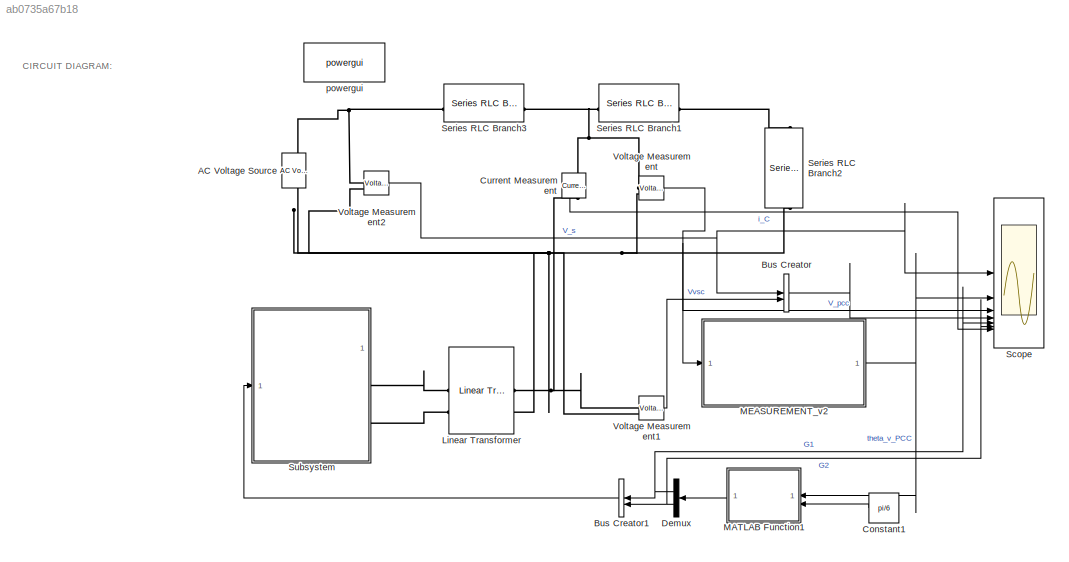
MODEL slx_ab0735a67b18
KIND model
CONFIG AbsTol = auto
CONFIG EnableMultiTasking = off
CONFIG FixedStep = auto
CONFIG MaxStep = auto
CONFIG MinStep = auto
CONFIG RelTol = 1e-3
CONFIG SampleTimeConstraint = Unconstrained
CONFIG SolverName = VariableStepAuto
CONFIG StartTime = 0.0
CONFIG StopTime = 0.1
BLOCK [Reference] AC Voltage Source  REF=spsACVoltageSourceLib/AC Voltage Source
  LibrarySourceBlock = sps_lib/Sources/AC Voltage Source
  SourceBlock = spsACVoltageSourceLib/AC Voltage Source
  SourceType = AC Voltage Source
BLOCK [BusCreator] Bus Creator
  DisplayOption = bar
  InheritFromInputs = on
  Inputs = 2
  NameLocation = right
BLOCK [BusCreator] Bus Creator1
  DisplayOption = bar
  InheritFromInputs = on
  Inputs = 2
  NameLocation = top
BLOCK [Constant] Constant1
  NameLocation = top
  Value = pi/6
BLOCK [Reference] Current Measurement  REF=spsCurrentMeasurementLib/Current Measurement
  LibrarySourceBlock = sps_lib/Sensors and Measurements/Current Measurement
  NameLocation = left
  SourceBlock = spsCurrentMeasurementLib/Current Measurement
  SourceType = Current Measurement
  UserDataPersistent = on
BLOCK [Demux] Demux
  NameLocation = top
  Outputs = 2
BLOCK [Reference] Linear Transformer  REF=spsLinearTransformerLib/Linear Transformer
  LibrarySourceBlock = sps_lib/Power Grid Elements/Linear Transformer
  SourceBlock = spsLinearTransformerLib/Linear Transformer
  SourceType = Linear Transformer
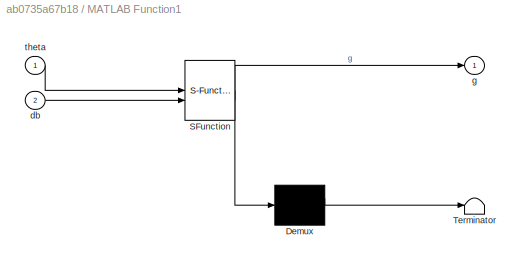
BLOCK [SubSystem] MATLAB Function1
  ErrorFcn = Stateflow.Translate.translate
  LibrarySourceBlock = simulink/User-Defined\nFunctions/MATLAB Function
  NameLocation = top
  PermitHierarchicalResolution = ExplicitOnly
  SFBlockType = MATLAB Function
  TreatAsAtomicUnit = on
BLOCK [Demux] MATLAB Function1/ Demux 
  Outputs = 1
BLOCK [S-Function] MATLAB Function1/ SFunction 
  EnableBusSupport = on
  FunctionName = sf_sfun
  PortCounts = [2 2]
  SFcnIsStateOwnerBlock = off
  SFunctionDeploymentMode = off
  Tag = Stateflow S-Function 1
BLOCK [Terminator] MATLAB Function1/ Terminator 
BLOCK [Inport] MATLAB Function1/db
  Port = 2
BLOCK [Outport] MATLAB Function1/g
BLOCK [Inport] MATLAB Function1/theta
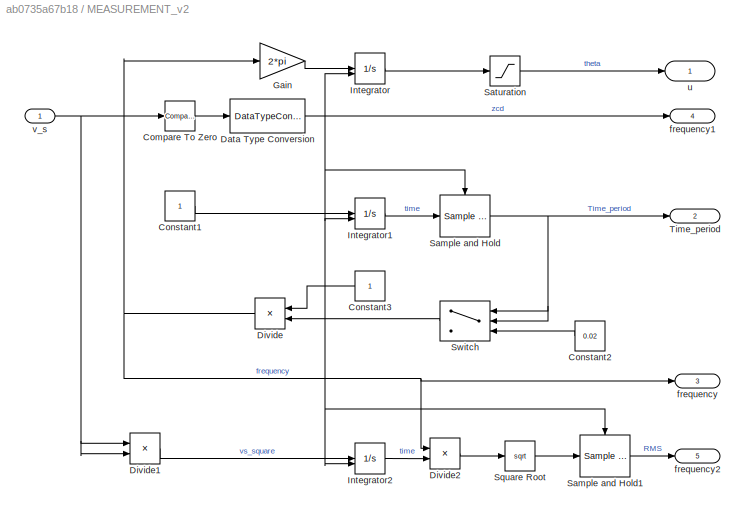
BLOCK [SubSystem] MEASUREMENT_v2
BLOCK [Reference] MEASUREMENT_v2/Compare To Zero  REF=simulink/Logic and Bit
Operations/Compare
To Zero
  SourceBlock = simulink/Logic and Bit\nOperations/Compare\nTo Zero
  SourceType = Compare To Zero
BLOCK [Constant] MEASUREMENT_v2/Constant1
BLOCK [Constant] MEASUREMENT_v2/Constant2
  NameLocation = top
  Value = 0.02
BLOCK [Constant] MEASUREMENT_v2/Constant3
  NameLocation = top
BLOCK [DataTypeConversion] MEASUREMENT_v2/Data Type Conversion
  RndMeth = Floor
  SaturateOnIntegerOverflow = off
BLOCK [Product] MEASUREMENT_v2/Divide
  Inputs = */
  NameLocation = top
BLOCK [Product] MEASUREMENT_v2/Divide1
  Inputs = **
BLOCK [Product] MEASUREMENT_v2/Divide2
  Inputs = **
BLOCK [Gain] MEASUREMENT_v2/Gain
  Gain = 2*pi
BLOCK [Integrator] MEASUREMENT_v2/Integrator
  ExternalReset = rising
BLOCK [Integrator] MEASUREMENT_v2/Integrator1
  ExternalReset = rising
BLOCK [Integrator] MEASUREMENT_v2/Integrator2
  ExternalReset = rising
BLOCK [Reference] MEASUREMENT_v2/Sample and Hold  REF=dspsigops/Sample
and Hold
  LibrarySourceBlock = dsphdlsupportsigops/Sample\nand Hold
  SourceBlock = dspsigops/Sample\nand Hold
  SourceType = Sample and Hold
BLOCK [Reference] MEASUREMENT_v2/Sample and Hold1  REF=dspsigops/Sample
and Hold
  LibrarySourceBlock = dsphdlsupportsigops/Sample\nand Hold
  SourceBlock = dspsigops/Sample\nand Hold
  SourceType = Sample and Hold
BLOCK [Saturate] MEASUREMENT_v2/Saturation
  LowerLimit = -2*pi
  UpperLimit = 2*pi
BLOCK [Sqrt] MEASUREMENT_v2/Square Root
BLOCK [Switch] MEASUREMENT_v2/Switch
  Criteria = u2 > Threshold
  InputSameDT = off
  NameLocation = top
  SaturateOnIntegerOverflow = off
BLOCK [Outport] MEASUREMENT_v2/Time_period
  IconDisplay = Port number and signal name
  Port = 2
BLOCK [Outport] MEASUREMENT_v2/frequency
  IconDisplay = Port number and signal name
  Port = 3
BLOCK [Outport] MEASUREMENT_v2/frequency1
  IconDisplay = Port number and signal name
  Port = 4
BLOCK [Outport] MEASUREMENT_v2/frequency2
  IconDisplay = Port number and signal name
  Port = 5
BLOCK [Outport] MEASUREMENT_v2/u
  IconDisplay = Port number and signal name
BLOCK [Inport] MEASUREMENT_v2/v_s
  IconDisplay = Port number and signal name
BLOCK [Scope] Scope
  Floating = off
  NumInputPorts = 8
  ScopeSpecificationString = Simulink.scopes.TimeScopeBlockCfg('CurrentConfiguration', extmgr.ConfigurationSet(extmgr.Configuration('Core','General UI',true,'FigureColor',[1 1 1]),extmgr.Configuration('Core','Source UI',true),extmgr.Configuration('Sources','WiredSimulink',true),extmgr.Configuration('Visuals','Time Domain',true,'SerializedDisplays',{struct('MinYLimReal','-35355.33906','MaxYLimReal','35355.33906','YLabelReal','...<+7305ch>
BLOCK [Reference] Series RLC Branch1  REF=spsSeriesRLCBranchLib/Series RLC Branch
  LibrarySourceBlock = sps_lib/Passives/Series RLC Branch
  SourceBlock = spsSeriesRLCBranchLib/Series RLC Branch
  SourceType = Series RLC Branch
BLOCK [Reference] Series RLC Branch2  REF=spsSeriesRLCBranchLib/Series RLC Branch
  LibrarySourceBlock = sps_lib/Passives/Series RLC Branch
  NameLocation = left
  SourceBlock = spsSeriesRLCBranchLib/Series RLC Branch
  SourceType = Series RLC Branch
BLOCK [Reference] Series RLC Branch3  REF=spsSeriesRLCBranchLib/Series RLC Branch
  LibrarySourceBlock = sps_lib/Passives/Series RLC Branch
  SourceBlock = spsSeriesRLCBranchLib/Series RLC Branch
  SourceType = Series RLC Branch
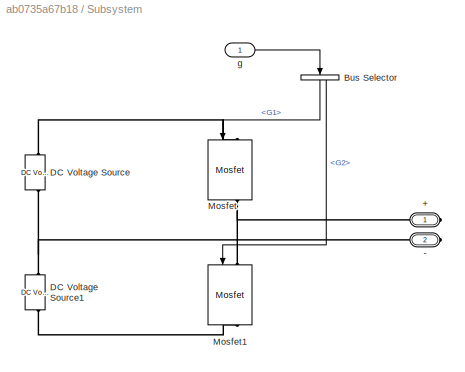
BLOCK [SubSystem] Subsystem
BLOCK [PMIOPort] Subsystem/+
  Side = Right
BLOCK [PMIOPort] Subsystem/-
  Port = 2
  Side = Right
BLOCK [BusSelector] Subsystem/Bus Selector
  NameLocation = left
  OutputSignals = G1,G2
BLOCK [Reference] Subsystem/DC Voltage Source  REF=spsDCVoltageSourceLib/DC Voltage Source
  LibrarySourceBlock = sps_lib/Sources/DC Voltage Source
  SourceBlock = spsDCVoltageSourceLib/DC Voltage Source
  SourceType = DC Voltage Source
BLOCK [Reference] Subsystem/DC Voltage Source1  REF=spsDCVoltageSourceLib/DC Voltage Source
  LibrarySourceBlock = sps_lib/Sources/DC Voltage Source
  SourceBlock = spsDCVoltageSourceLib/DC Voltage Source
  SourceType = DC Voltage Source
BLOCK [Reference] Subsystem/Mosfet  REF=spsMosfetLib/Mosfet
  LibrarySourceBlock = sps_lib/Power Electronics/Mosfet
  NameLocation = left
  SourceBlock = spsMosfetLib/Mosfet
  SourceType = Mosfet
BLOCK [Reference] Subsystem/Mosfet1  REF=spsMosfetLib/Mosfet
  LibrarySourceBlock = sps_lib/Power Electronics/Mosfet
  NameLocation = left
  SourceBlock = spsMosfetLib/Mosfet
  SourceType = Mosfet
BLOCK [Inport] Subsystem/g
BLOCK [Reference] Voltage Measurement  REF=spsVoltageMeasurementLib/Voltage Measurement
  LibrarySourceBlock = sps_lib/Sensors and Measurements/Voltage Measurement
  SourceBlock = spsVoltageMeasurementLib/Voltage Measurement
  SourceType = Voltage Measurement
  UserDataPersistent = on
BLOCK [Reference] Voltage Measurement1  REF=spsVoltageMeasurementLib/Voltage Measurement
  LibrarySourceBlock = sps_lib/Sensors and Measurements/Voltage Measurement
  SourceBlock = spsVoltageMeasurementLib/Voltage Measurement
  SourceType = Voltage Measurement
  UserDataPersistent = on
BLOCK [Reference] Voltage Measurement2  REF=spsVoltageMeasurementLib/Voltage Measurement
  LibrarySourceBlock = sps_lib/Sensors and Measurements/Voltage Measurement
  SourceBlock = spsVoltageMeasurementLib/Voltage Measurement
  SourceType = Voltage Measurement
  UserDataPersistent = on
BLOCK [Reference] powergui  REF=spspowerguiLib/powergui
  LibrarySourceBlock = sps_lib/powergui
  Priority = 1
  SourceBlock = spspowerguiLib/powergui
  SourceType = PSB option menu block
ANNOTATION (root): CIRCUIT DIAGRAM:
LINE Bus Creator1:1 -> Subsystem:1
LINE Bus Creator:1 -> Scope:4
LINE Constant1:1 -> MATLAB Function1:2
LINE Current Measurement:1 -> Scope:7
NET Demux:1 -> Bus Creator1:1, Scope:5
NET Demux:2 -> Bus Creator1:2, Scope:6
LINE MATLAB Function1:1 -> Demux:1
LINE MEASUREMENT_v2/Compare To Zero:1 -> MEASUREMENT_v2/Data Type Conversion:1
LINE MEASUREMENT_v2/Constant1:1 -> MEASUREMENT_v2/Integrator1:1
LINE MEASUREMENT_v2/Constant2:1 -> MEASUREMENT_v2/Switch:3
LINE MEASUREMENT_v2/Constant3:1 -> MEASUREMENT_v2/Divide:1
NET MEASUREMENT_v2/Data Type Conversion:1 -> MEASUREMENT_v2/Integrator1:2, MEASUREMENT_v2/Integrator2:2, MEASUREMENT_v2/Integrator:2, MEASUREMENT_v2/Sample and Hold1:trigger, MEASUREMENT_v2/Sample and Hold:trigger, MEASUREMENT_v2/frequency1:1
LINE MEASUREMENT_v2/Divide1:1 -> MEASUREMENT_v2/Integrator2:1
LINE MEASUREMENT_v2/Divide2:1 -> MEASUREMENT_v2/Square Root:1
NET MEASUREMENT_v2/Divide:1 -> MEASUREMENT_v2/Divide2:1, MEASUREMENT_v2/Gain:1, MEASUREMENT_v2/frequency:1
LINE MEASUREMENT_v2/Gain:1 -> MEASUREMENT_v2/Integrator:1
LINE MEASUREMENT_v2/Integrator1:1 -> MEASUREMENT_v2/Sample and Hold:1
LINE MEASUREMENT_v2/Integrator2:1 -> MEASUREMENT_v2/Divide2:2
LINE MEASUREMENT_v2/Integrator:1 -> MEASUREMENT_v2/Saturation:1
LINE MEASUREMENT_v2/Sample and Hold1:1 -> MEASUREMENT_v2/frequency2:1
NET MEASUREMENT_v2/Sample and Hold:1 -> MEASUREMENT_v2/Switch:1, MEASUREMENT_v2/Switch:2, MEASUREMENT_v2/Time_period:1
LINE MEASUREMENT_v2/Saturation:1 -> MEASUREMENT_v2/u:1
LINE MEASUREMENT_v2/Square Root:1 -> MEASUREMENT_v2/Sample and Hold1:1
LINE MEASUREMENT_v2/Switch:1 -> MEASUREMENT_v2/Divide:2
NET MEASUREMENT_v2/v_s:1 -> MEASUREMENT_v2/Compare To Zero:1, MEASUREMENT_v2/Divide1:1, MEASUREMENT_v2/Divide1:2
NET MEASUREMENT_v2:1 -> MATLAB Function1:1, Scope:2
LINE Subsystem/Bus Selector:1 -> Subsystem/Mosfet:1
LINE Subsystem/Bus Selector:2 -> Subsystem/Mosfet1:1
LINE Subsystem/g:1 -> Subsystem/Bus Selector:1
LINE Voltage Measurement1:1 -> Bus Creator:2
NET Voltage Measurement2:1 -> Bus Creator:1, Scope:1
NET Voltage Measurement:1 -> MEASUREMENT_v2:1, Scope:3
PNET net1: AC Voltage Source:LConn1 -- Linear Transformer:RConn2 -- Series RLC Branch2:RConn1 -- Voltage Measurement1:LConn2 -- Voltage Measurement2:LConn2 -- Voltage Measurement:LConn2
PNET net2: AC Voltage Source:RConn1 -- Series RLC Branch3:LConn1 -- Voltage Measurement2:LConn1
PNET net3: Current Measurement:LConn1 -- Series RLC Branch1:LConn1 -- Series RLC Branch3:RConn1 -- Voltage Measurement:LConn1
PNET net4: Current Measurement:RConn1 -- Linear Transformer:RConn1 -- Voltage Measurement1:LConn1
PLINE Linear Transformer:LConn1 -- Subsystem:RConn1
PLINE Linear Transformer:LConn2 -- Subsystem:RConn2
PLINE Series RLC Branch1:RConn1 -- Series RLC Branch2:LConn1
PNET net5: Subsystem/+:RConn1 -- Subsystem/Mosfet1:LConn1 -- Subsystem/Mosfet:RConn1
PNET net6: Subsystem/-:RConn1 -- Subsystem/DC Voltage Source1:RConn1 -- Subsystem/DC Voltage Source:LConn1
PLINE Subsystem/DC Voltage Source1:LConn1 -- Subsystem/Mosfet1:RConn1
PLINE Subsystem/DC Voltage Source:RConn1 -- Subsystem/Mosfet:LConn1
note: NET lines group one-source signal fan-out (src -> all destinations, sorted); 1:1 wires keep LINE; PNET lines group multi-terminal physical nets as a canonical sorted terminal list (undirected conserving connections); 2-terminal nets keep the pairwise PLINE form
CHART MATLAB Function1 states=1 transitions=1
  STATE_LABEL 'eML_blk_kernel()'
  STATE_LABEL 'SCRIPT:\nfunction g = fcn(theta, db)\ng = [0 0];\n\nif (theta>= db/2 && theta < pi-db/2)\ng = [1 0];\nend\n\nif (theta>= pi+db/2 && theta < 2*pi-db/2)\ng = [0 1];\nend\n'
CHART  states=0 transitions=0
